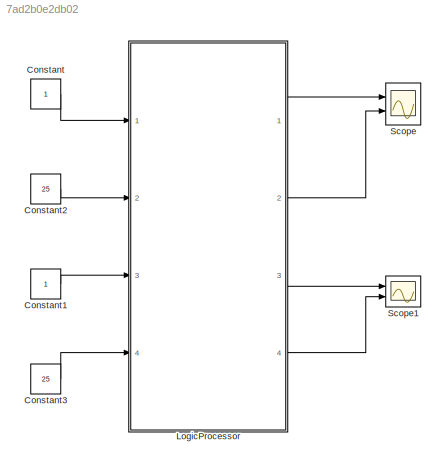
MODEL slx_7ad2b0e2db02
KIND model
CONFIG AbsTol = auto
CONFIG FixedStep = auto
CONFIG MaxStep = auto
CONFIG MinStep = auto
CONFIG RelTol = 1e-3
CONFIG SampleTimeConstraint = Unconstrained
CONFIG Solver = VariableStepAuto
CONFIG SolverMode = Auto
CONFIG SolverName = VariableStepAuto
CONFIG StartTime = 0.0
CONFIG StopTime = 10.0
BLOCK [Constant] Constant
  OutDataTypeStr = boolean
  SampleTime = 1
BLOCK [Constant] Constant1
  OutDataTypeStr = boolean
  SampleTime = 1
BLOCK [Constant] Constant2
  OutDataTypeStr = uint32
  SampleTime = 1
  Value = 25
BLOCK [Constant] Constant3
  OutDataTypeStr = uint32
  SampleTime = 1
  Value = 25
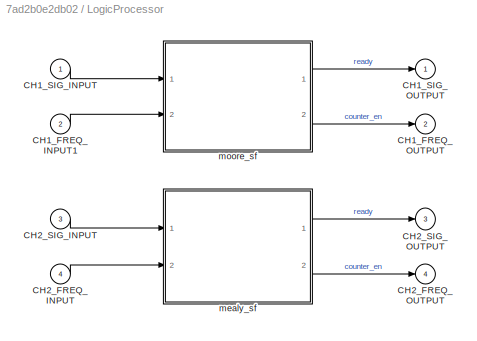
BLOCK [SubSystem] LogicProcessor
  Ports = [4, 4]
  RequestExecContextInheritance = off
  Variant = off
BLOCK [Inport] LogicProcessor/CH1_FREQ_INPUT1
  IconDisplay = Port number
  Port = 2
BLOCK [Outport] LogicProcessor/CH1_FREQ_OUTPUT
  IconDisplay = Port number
  Port = 2
BLOCK [Inport] LogicProcessor/CH1_SIG_INPUT
  IconDisplay = Port number
BLOCK [Outport] LogicProcessor/CH1_SIG_OUTPUT
  IconDisplay = Port number
BLOCK [Inport] LogicProcessor/CH2_FREQ_INPUT
  IconDisplay = Port number
  Port = 4
BLOCK [Outport] LogicProcessor/CH2_FREQ_OUTPUT
  IconDisplay = Port number
  Port = 4
BLOCK [Inport] LogicProcessor/CH2_SIG_INPUT
  IconDisplay = Port number
  Port = 3
BLOCK [Outport] LogicProcessor/CH2_SIG_OUTPUT
  IconDisplay = Port number
  Port = 3
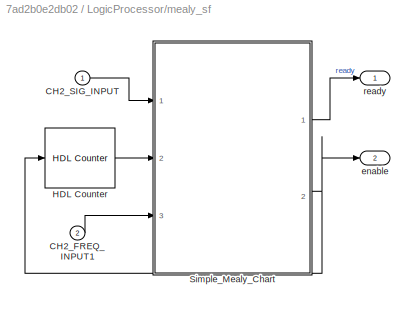
BLOCK [SubSystem] LogicProcessor/mealy_sf
  Ports = [2, 2]
  RequestExecContextInheritance = off
  Variant = off
BLOCK [Inport] LogicProcessor/mealy_sf/CH2_FREQ_INPUT1
  IconDisplay = Port number
  Port = 2
BLOCK [Inport] LogicProcessor/mealy_sf/CH2_SIG_INPUT
  IconDisplay = Port number
BLOCK [Reference] LogicProcessor/mealy_sf/HDL Counter  REF=hdlsllib/HDL Operations/HDL Counter
  Ports = [1, 1]
  SourceBlock = hdlsllib/HDL Operations/HDL Counter
  SourceType = HDL Counter
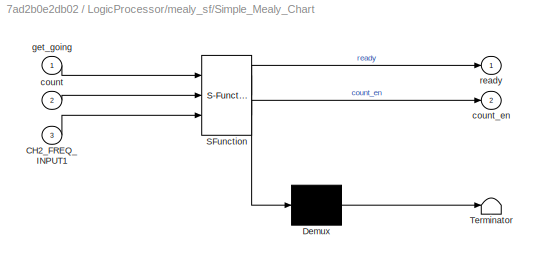
BLOCK [SubSystem] LogicProcessor/mealy_sf/Simple_Mealy_Chart
  ErrorFcn = Stateflow.Translate.translate
  PermitHierarchicalResolution = ExplicitOnly
  Ports = [3, 2]
  RequestExecContextInheritance = off
  SFBlockType = Chart
  TreatAsAtomicUnit = on
  Variant = off
BLOCK [Demux] LogicProcessor/mealy_sf/Simple_Mealy_Chart/ Demux 
  Outputs = 1
  Ports = [1, 1]
BLOCK [S-Function] LogicProcessor/mealy_sf/Simple_Mealy_Chart/ SFunction 
  EnableBusSupport = on
  FunctionName = sf_sfun
  PortCounts = [3 3]
  Ports = [3, 3]
  SFunctionDeploymentMode = off
  Tag = Stateflow S-Function gm_LogicProcessor 2
BLOCK [Terminator] LogicProcessor/mealy_sf/Simple_Mealy_Chart/ Terminator 
BLOCK [Inport] LogicProcessor/mealy_sf/Simple_Mealy_Chart/CH2_FREQ_INPUT1
  IconDisplay = Port number
  Port = 3
BLOCK [Inport] LogicProcessor/mealy_sf/Simple_Mealy_Chart/count
  IconDisplay = Port number
  Port = 2
BLOCK [Outport] LogicProcessor/mealy_sf/Simple_Mealy_Chart/count_en
  IconDisplay = Port number
  Port = 2
BLOCK [Inport] LogicProcessor/mealy_sf/Simple_Mealy_Chart/get_going
  IconDisplay = Port number
BLOCK [Outport] LogicProcessor/mealy_sf/Simple_Mealy_Chart/ready
  IconDisplay = Port number
BLOCK [Outport] LogicProcessor/mealy_sf/enable
  IconDisplay = Port number
  Port = 2
BLOCK [Outport] LogicProcessor/mealy_sf/ready
  IconDisplay = Port number
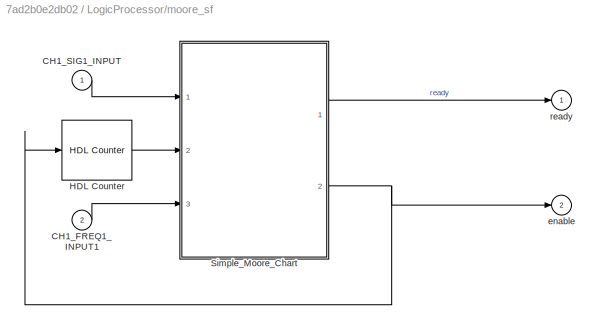
BLOCK [SubSystem] LogicProcessor/moore_sf
  Ports = [2, 2]
  RequestExecContextInheritance = off
  Variant = off
BLOCK [Inport] LogicProcessor/moore_sf/CH1_FREQ1_INPUT1
  IconDisplay = Port number
  Port = 2
BLOCK [Inport] LogicProcessor/moore_sf/CH1_SIG1_INPUT
  IconDisplay = Port number
BLOCK [Reference] LogicProcessor/moore_sf/HDL Counter  REF=hdlsllib/HDL Operations/HDL Counter
  Ports = [1, 1]
  SourceBlock = hdlsllib/HDL Operations/HDL Counter
  SourceType = HDL Counter
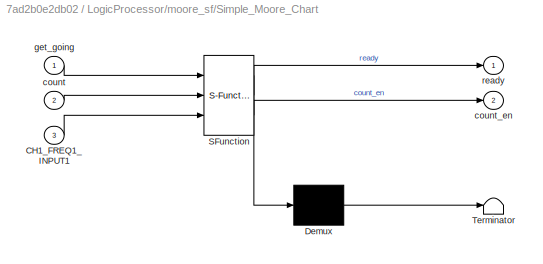
BLOCK [SubSystem] LogicProcessor/moore_sf/Simple_Moore_Chart
  ErrorFcn = Stateflow.Translate.translate
  PermitHierarchicalResolution = ExplicitOnly
  Ports = [3, 2]
  RequestExecContextInheritance = off
  SFBlockType = Chart
  TreatAsAtomicUnit = on
  Variant = off
BLOCK [Demux] LogicProcessor/moore_sf/Simple_Moore_Chart/ Demux 
  Outputs = 1
  Ports = [1, 1]
BLOCK [S-Function] LogicProcessor/moore_sf/Simple_Moore_Chart/ SFunction 
  EnableBusSupport = on
  FunctionName = sf_sfun
  PortCounts = [3 3]
  Ports = [3, 3]
  SFunctionDeploymentMode = off
  Tag = Stateflow S-Function gm_LogicProcessor 1
BLOCK [Terminator] LogicProcessor/moore_sf/Simple_Moore_Chart/ Terminator 
BLOCK [Inport] LogicProcessor/moore_sf/Simple_Moore_Chart/CH1_FREQ1_INPUT1
  IconDisplay = Port number
  Port = 3
BLOCK [Inport] LogicProcessor/moore_sf/Simple_Moore_Chart/count
  IconDisplay = Port number
  Port = 2
BLOCK [Outport] LogicProcessor/moore_sf/Simple_Moore_Chart/count_en
  IconDisplay = Port number
  Port = 2
BLOCK [Inport] LogicProcessor/moore_sf/Simple_Moore_Chart/get_going
  IconDisplay = Port number
BLOCK [Outport] LogicProcessor/moore_sf/Simple_Moore_Chart/ready
  IconDisplay = Port number
BLOCK [Outport] LogicProcessor/moore_sf/enable
  IconDisplay = Port number
  Port = 2
BLOCK [Outport] LogicProcessor/moore_sf/ready
  IconDisplay = Port number
BLOCK [Scope] Scope
  NumInputPorts = 2
  Ports = [2]
  ScopeSpecificationString = Simulink.scopes.TimeScopeBlockCfg('CurrentConfiguration', extmgr.ConfigurationSet(extmgr.Configuration('Core','General UI',true,'FigureColor',[0.156862745098039 0.156862745098039 0.156862745098039]),extmgr.Configuration('Core','Source UI',true),extmgr.Configuration('Sources','WiredSimulink',true,'DataLoggingSaveFormat','StructureWithTime','DataLoggingDecimation','1'),extmgr.Configuration('Visuals'...<+2369ch>
BLOCK [Scope] Scope1
  NumInputPorts = 2
  Ports = [2]
  ScopeSpecificationString = Simulink.scopes.TimeScopeBlockCfg('CurrentConfiguration', extmgr.ConfigurationSet(extmgr.Configuration('Core','General UI',true,'ShowLoadConfigSet',false,'ShowNewAction',false,'FigureColor',[0.156862745098039 0.156862745098039 0.156862745098039],'ShowSaveConfigSet',false,'ShowConfiguration',true,'ShowPlaybackToolbar',false),extmgr.Configuration('Core','Source UI',true,'ShowRecentSources',false,'Sh...<+2755ch>
LINE Constant1:1 -> LogicProcessor:3
LINE Constant2:1 -> LogicProcessor:2
LINE Constant3:1 -> LogicProcessor:4
LINE Constant:1 -> LogicProcessor:1
LINE LogicProcessor/CH1_FREQ_INPUT1:1 -> LogicProcessor/moore_sf:2
LINE LogicProcessor/CH1_SIG_INPUT:1 -> LogicProcessor/moore_sf:1
LINE LogicProcessor/CH2_FREQ_INPUT:1 -> LogicProcessor/mealy_sf:2
LINE LogicProcessor/CH2_SIG_INPUT:1 -> LogicProcessor/mealy_sf:1
LINE LogicProcessor/mealy_sf/CH2_FREQ_INPUT1:1 -> LogicProcessor/mealy_sf/Simple_Mealy_Chart:3
LINE LogicProcessor/mealy_sf/CH2_SIG_INPUT:1 -> LogicProcessor/mealy_sf/Simple_Mealy_Chart:1
LINE LogicProcessor/mealy_sf/HDL Counter:1 -> LogicProcessor/mealy_sf/Simple_Mealy_Chart:2
LINE LogicProcessor/mealy_sf/Simple_Mealy_Chart:1 -> LogicProcessor/mealy_sf/ready:1
NET LogicProcessor/mealy_sf/Simple_Mealy_Chart:2 -> LogicProcessor/mealy_sf/HDL Counter:1, LogicProcessor/mealy_sf/enable:1
LINE LogicProcessor/mealy_sf:1 -> LogicProcessor/CH2_SIG_OUTPUT:1
LINE LogicProcessor/mealy_sf:2 -> LogicProcessor/CH2_FREQ_OUTPUT:1
LINE LogicProcessor/moore_sf/CH1_FREQ1_INPUT1:1 -> LogicProcessor/moore_sf/Simple_Moore_Chart:3
LINE LogicProcessor/moore_sf/CH1_SIG1_INPUT:1 -> LogicProcessor/moore_sf/Simple_Moore_Chart:1
LINE LogicProcessor/moore_sf/HDL Counter:1 -> LogicProcessor/moore_sf/Simple_Moore_Chart:2
LINE LogicProcessor/moore_sf/Simple_Moore_Chart:1 -> LogicProcessor/moore_sf/ready:1
NET LogicProcessor/moore_sf/Simple_Moore_Chart:2 -> LogicProcessor/moore_sf/HDL Counter:1, LogicProcessor/moore_sf/enable:1
LINE LogicProcessor/moore_sf:1 -> LogicProcessor/CH1_SIG_OUTPUT:1
LINE LogicProcessor/moore_sf:2 -> LogicProcessor/CH1_FREQ_OUTPUT:1
LINE LogicProcessor:1 -> Scope:1
LINE LogicProcessor:2 -> Scope:2
LINE LogicProcessor:3 -> Scope1:1
LINE LogicProcessor:4 -> Scope1:2
note: NET lines group one-source signal fan-out (src -> all destinations, sorted); 1:1 wires keep LINE
CHART LogicProcessor/moore_sf/Simple_Moore_Chart states=2 transitions=3
  STATE_LABEL 'IDLE\nready = true;\ncount_en = false;'
  STATE_LABEL 'COUNTING\n ready = false;\ncount_en = true;'
CHART LogicProcessor/mealy_sf/Simple_Mealy_Chart states=2 transitions=3
  STATE_LABEL 'IDLE'
  STATE_LABEL 'COUNTING'
